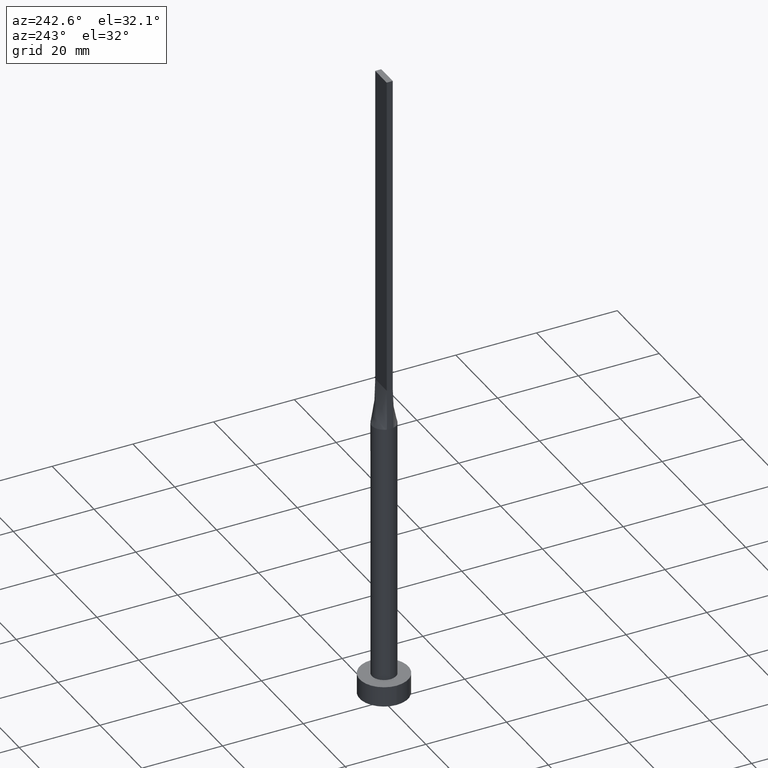
[diagram: clean part render]
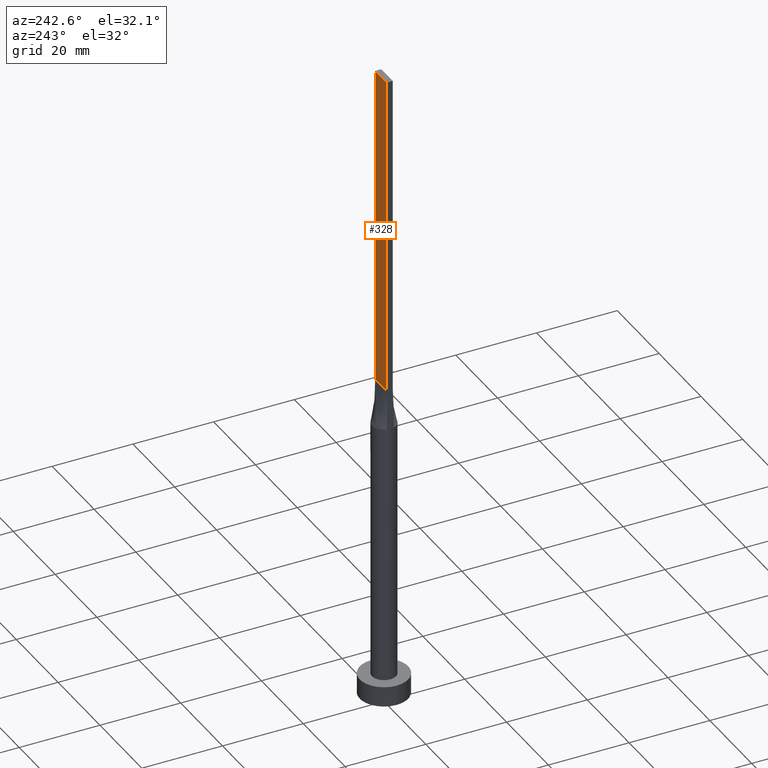
[diagram: same view with one face highlighted and labeled with its STEP entity id]
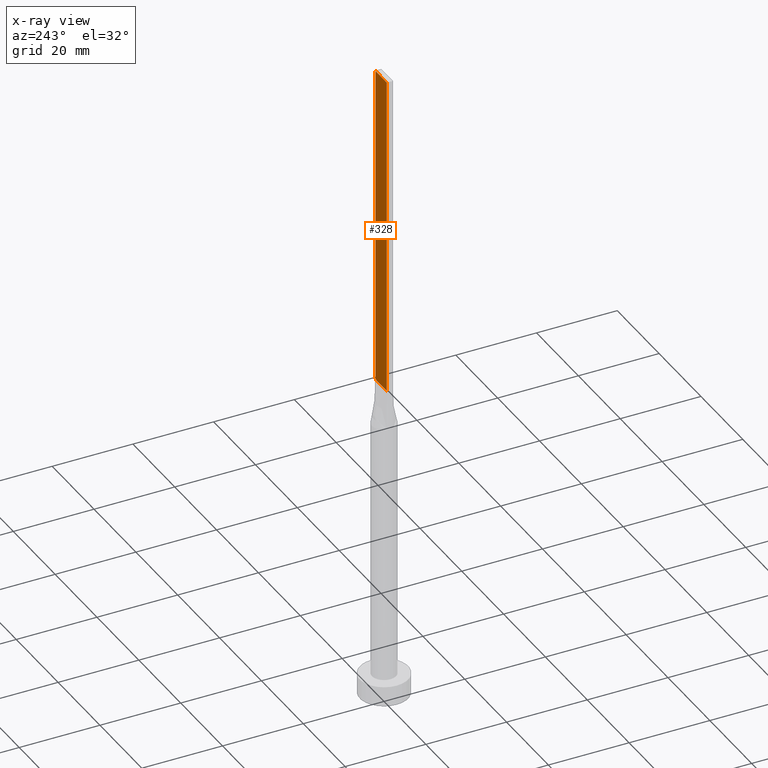
[diagram: x-ray of the same camera — body ghosted, the highlighted face saturated]
A machine part, auxiliary view. The second image highlights one B-rep face of the part: STEP entity #328.
The next image is the same camera in x-ray: the body ghosted, the highlighted face saturated — about 0% of this face is hidden behind the body in this view.
In plain terms, the highlighted planar face has unit normal (0, -1, 0).
Its self-contained STEP definition (entity closure, byte-faithful):
#7 = VECTOR ( 'NONE', #359, 1000.000000000000000 ) ;
#22 = DIRECTION ( 'NONE',  ( -0.000000000000000000, -0.000000000000000000, -1.000000000000000000 ) ) ;
#41 = CARTESIAN_POINT ( 'NONE',  ( -2.750000000000000000, 0.7500000000000002220, 160.0000000000000000 ) ) ;
#43 = CARTESIAN_POINT ( 'NONE',  ( -2.750000000000000000, 0.7500000000000002220, 80.00000000000000000 ) ) ;
#73 = ORIENTED_EDGE ( 'NONE', *, *, #237, .T. ) ;
#93 = CARTESIAN_POINT ( 'NONE',  ( 2.750000000000000000, 0.7500000000000002220, 160.0000000000000000 ) ) ;
#100 = CARTESIAN_POINT ( 'NONE',  ( 2.750000000000000000, 0.7500000000000002220, 160.0000000000000000 ) ) ;
#111 = VERTEX_POINT ( 'NONE', #43 ) ;
#113 = ORIENTED_EDGE ( 'NONE', *, *, #376, .F. ) ;
#119 = VERTEX_POINT ( 'NONE', #41 ) ;
#124 = CARTESIAN_POINT ( 'NONE',  ( -2.750000000000000000, 0.7500000000000002220, 160.0000000000000000 ) ) ;
#132 = DIRECTION ( 'NONE',  ( -0.000000000000000000, -0.000000000000000000, -1.000000000000000000 ) ) ;
#149 = FACE_OUTER_BOUND ( 'NONE', #545, .T. ) ;
#160 = EDGE_CURVE ( 'NONE', #314, #119, #320, .T. ) ;
#170 = ORIENTED_EDGE ( 'NONE', *, *, #552, .T. ) ;
#193 = DIRECTION ( 'NONE',  ( 0.000000000000000000, -1.000000000000000000, 0.000000000000000000 ) ) ;
#216 = ORIENTED_EDGE ( 'NONE', *, *, #160, .F. ) ;
#230 = VECTOR ( 'NONE', #22, 1000.000000000000000 ) ;
#237 = EDGE_CURVE ( 'NONE', #255, #111, #428, .T. ) ;
#246 = DIRECTION ( 'NONE',  ( 0.000000000000000000, -0.000000000000000000, -1.000000000000000000 ) ) ;
#255 = VERTEX_POINT ( 'NONE', #381 ) ;
#314 = VERTEX_POINT ( 'NONE', #420 ) ;
#320 = LINE ( 'NONE', #93, #7 ) ;
#328 = ADVANCED_FACE ( 'NONE', ( #149 ), #331, .F. ) ;
#331 = PLANE ( 'NONE',  #541 ) ;
#347 = CARTESIAN_POINT ( 'NONE',  ( 2.750000000000000000, 0.7500000000000002220, 160.0000000000000000 ) ) ;
#350 = CARTESIAN_POINT ( 'NONE',  ( -2.750000000000000000, 0.7500000000000002220, 80.00000000000000000 ) ) ;
#359 = DIRECTION ( 'NONE',  ( -1.000000000000000000, 0.000000000000000000, 0.000000000000000000 ) ) ;
#376 = EDGE_CURVE ( 'NONE', #119, #111, #546, .T. ) ;
#381 = CARTESIAN_POINT ( 'NONE',  ( 2.750000000000000000, 0.7500000000000002220, 80.00000000000000000 ) ) ;
#387 = VECTOR ( 'NONE', #571, 1000.000000000000000 ) ;
#406 = VECTOR ( 'NONE', #132, 1000.000000000000000 ) ;
#420 = CARTESIAN_POINT ( 'NONE',  ( 2.750000000000000000, 0.7500000000000002220, 160.0000000000000000 ) ) ;
#428 = LINE ( 'NONE', #350, #387 ) ;
#429 = LINE ( 'NONE', #347, #230 ) ;
#541 = AXIS2_PLACEMENT_3D ( 'NONE', #100, #193, #246 ) ;
#545 = EDGE_LOOP ( 'NONE', ( #73, #113, #216, #170 ) ) ;
#546 = LINE ( 'NONE', #124, #406 ) ;
#552 = EDGE_CURVE ( 'NONE', #314, #255, #429, .T. ) ;
#571 = DIRECTION ( 'NONE',  ( -1.000000000000000000, -0.000000000000000000, -0.000000000000000000 ) ) ;